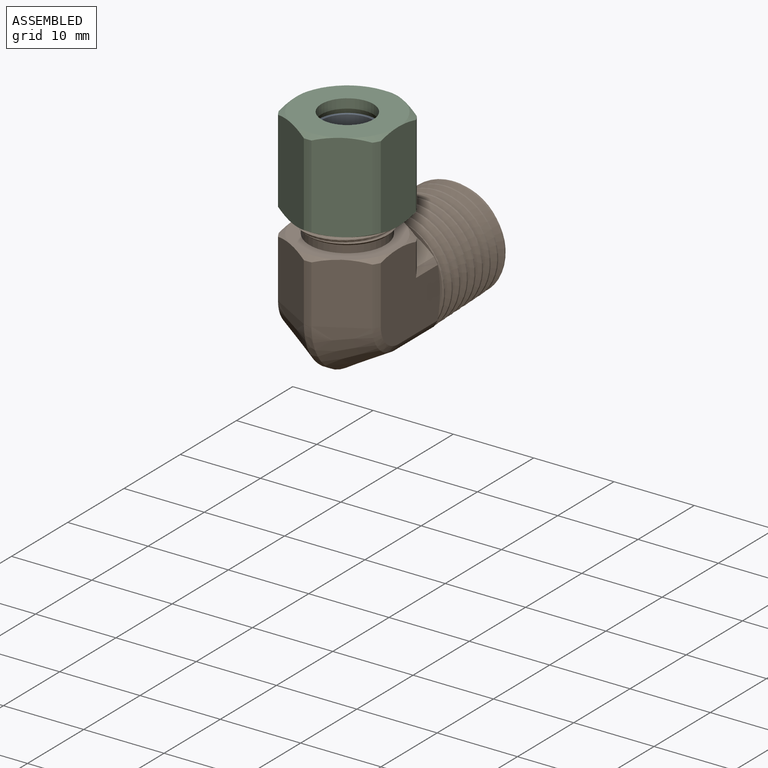
[diagram: assembled view]
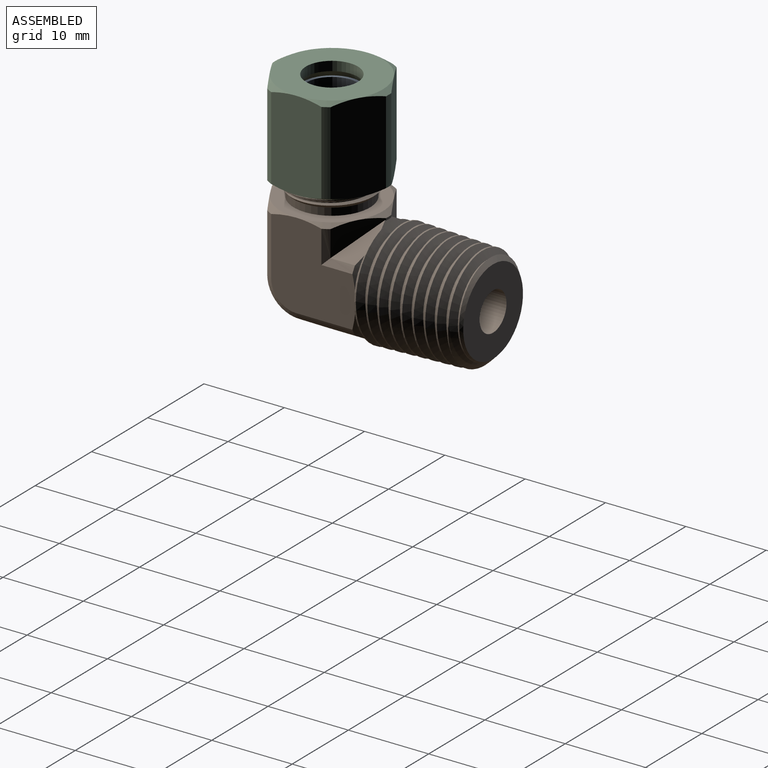
[diagram: assembled view, second angle]
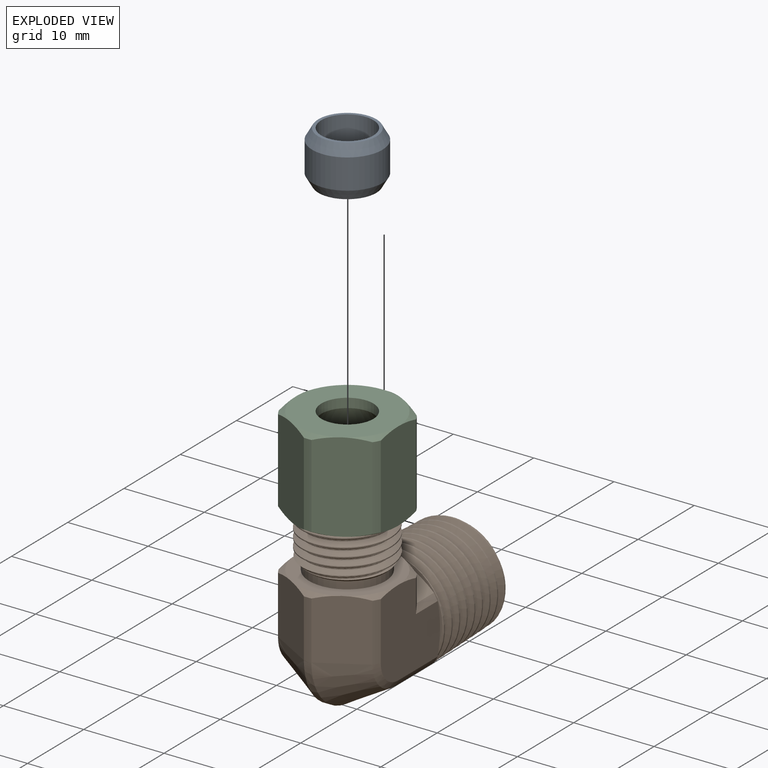
[diagram: exploded view]
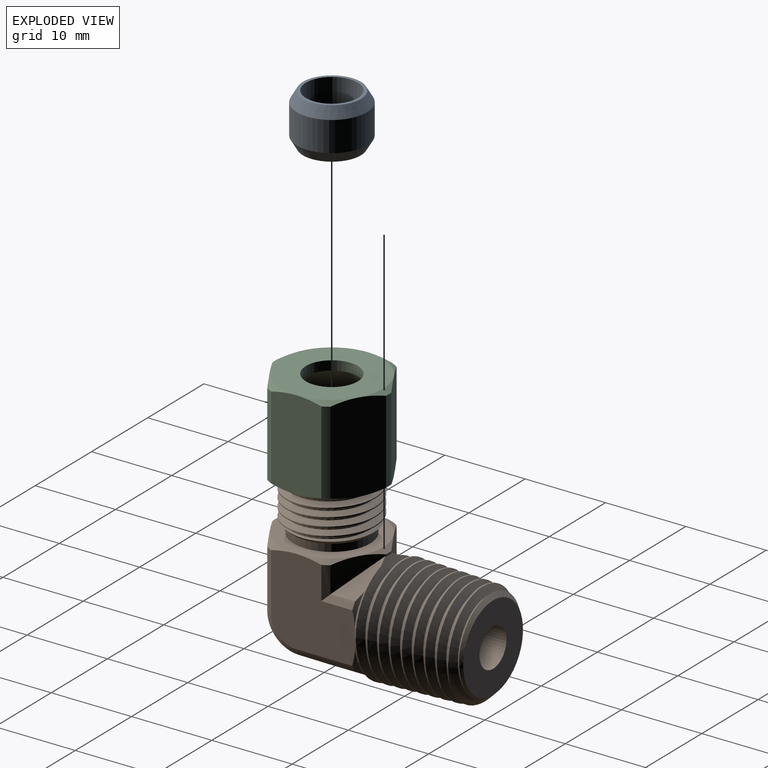
[diagram: exploded view, second angle]
ASSEMBLY  parts=3 mates=2
PART A: 6 faces, bbox 8.7x8.7x6.4 mm
  f0: cone r=3.62mm half-angle=30deg, axis (0,0,1), area 37.8mm2, adj f1,f5
  f1: cylinder r=4.37mm len=8.74mm, axis (0,0,1), area 102.7mm2, adj f0,f2
  f2: cone r=4.37mm half-angle=30deg, axis (0,0,-1), area 37.8mm2, adj f1,f4
  f3: cylinder r=3.24mm len=6.48mm, axis (0,0,1), area 129.2mm2, adj f4,f5
  f4: plane 7.23x7.23mm, normal (0,0,1), area 8.1mm2, adj f2,f3
  f5: plane 7.23x7.23mm, normal (0,0,-1), area 8.1mm2, adj f0,f3
PART B: 65 faces, bbox 14.6x28x23.7 mm
  f0: cone r=7.08mm half-angle=60deg, axis (0,-1,0), area 3.3mm2, adj f1,f43,f57,f58
  f1: cylinder r=7.08mm len=6.99mm, axis (0,-1,0), area 6.5mm2, adj f0,f57,f58,f63
  f2: cone r=5.32mm half-angle=45deg, axis (0,-1,0), area 26.4mm2, adj f3,f42,f45,f46,f47
  f3: cone r=5.32mm half-angle=45deg, axis (0,-1,0), area 6.6mm2, adj f2,f4,f45,f47
  f4: cone r=6.39mm half-angle=1.8deg, axis (0,-1,0), area 71.9mm2, adj f3,f44,f45,f47
  f5: cylinder r=2.39mm len=20.07mm, axis (0,-1,0), area 292.1mm2, adj f6,f42,f64
  f6: cylinder r=2.39mm len=8.38mm, axis (0,0,1), area 116.8mm2, adj f5,f39,f64
  f7: cylinder r=3.24mm len=6.48mm, axis (0,0,1), area 97.5mm2, adj f38,f39
  f8: cone r=3.62mm half-angle=30deg, axis (0,0,1), area 37.8mm2, adj f9,f38
  f9: cylinder r=4.37mm len=8.74mm, axis (0,0,1), area 20.9mm2, adj f8,f17
  f10: cone r=4.75mm half-angle=45deg, axis (0,0,-1), area 20.6mm2, adj f13,f17,f19,f20,f21,f22
  f11: cylinder r=4.75mm len=9.51mm, axis (0,0,1), area 27.4mm2, adj f12,f18
  f12: cone r=5.67mm half-angle=45deg, axis (0,0,1), area 20.5mm2, adj f11,f13,f19,f20,f21
  f13: cylinder r=5.56mm len=11.11mm, axis (0,0,1), area 22.3mm2, adj f10,f12,f19,f21
  f14: cylinder r=7.08mm len=0.93mm, axis (0,0,1), area 0.2mm2, adj f15,f16,f31,f52
  f15: plane 5.86x4.12mm, normal (-0.5,0.87,0), area 12.4mm2, adj f14,f29,f30,f31,f40,f52
  f16: plane 5.86x4.12mm, normal (0.5,0.87,0), area 12.4mm2, adj f14,f31,f32,f33,f41,f52
  f17: plane 9.51x9.51mm, normal (0,0,1), area 11mm2, adj f9,f10
  f18: plane 12.7x12.7mm, normal (0,0,1), area 55.7mm2, adj f11,f23,f25,f27,f29,f31,f33
  f19: bspline ~11.23x11.23mm, area 141.8mm2, adj f10,f12,f13,f20
  f20: cylinder r=4.87mm len=9.74mm, axis (0,0,1), area 26.2mm2, adj f10,f12,f19,f21,f22
  f21: bspline ~11.23x11.23mm, area 141.5mm2, adj f10,f12,f13,f20
  f22: bspline ~11.23x5.61mm, area 1.3mm2, adj f10,f20
  f23: cone r=6.35mm half-angle=60deg, axis (0,0,-1), area 3.3mm2, adj f18,f24,f36,f37
  f24: cylinder r=7.08mm len=7.2mm, axis (0,0,1), area 6.7mm2, adj f23,f36,f37,f60
  f25: cone r=6.35mm half-angle=60deg, axis (0,0,-1), area 3.3mm2, adj f18,f26,f35,f36
  f26: cylinder r=7.08mm len=7.2mm, axis (0,0,1), area 6.7mm2, adj f25,f35,f36,f63
  f27: cone r=6.35mm half-angle=60deg, axis (0,0,-1), area 3.3mm2, adj f18,f28,f34,f35
  f28: cylinder r=7.08mm len=7.2mm, axis (0,0,1), area 6.7mm2, adj f27,f34,f35,f62
  f29: cone r=6.35mm half-angle=60deg, axis (0,0,-1), area 3.3mm2, adj f15,f18,f30,f34
  f30: cylinder r=7.08mm len=4.07mm, axis (0,0,1), area 3.4mm2, adj f15,f29,f34,f50
  f31: cone r=6.35mm half-angle=60deg, axis (0,0,-1), area 3.3mm2, adj f14,f15,f16,f18
  f32: cylinder r=7.08mm len=4.07mm, axis (0,0,1), area 3.4mm2, adj f16,f33,f37,f53
  f33: cone r=6.35mm half-angle=60deg, axis (0,0,-1), area 3.3mm2, adj f16,f18,f32,f37
  f34: plane 11.19x10.98mm, normal (-1,0,0), area 90.1mm2, adj f27,f28,f29,f30,f48,f49,f50,f51
  f35: plane 8.06x5.86mm, normal (-0.5,-0.87,0), area 46.8mm2, adj f25,f26,f27,f28,f61
  f36: plane 8.06x5.86mm, normal (0.5,-0.87,0), area 46.8mm2, adj f23,f24,f25,f26,f59
  f37: plane 11.19x10.98mm, normal (1,0,0), area 90.1mm2, adj f23,f24,f32,f33,f53,f54,f55,f56
  f38: plane 7.23x7.23mm, normal (0,0,1), area 8.1mm2, adj f7,f8
  f39: plane 6.48x6.48mm, normal (0,0,1), area 15mm2, adj f6,f7
  f40: plane 5.77x3.91mm, normal (-0.5,0,0.87), area 11.1mm2, adj f15,f50,f51,f52
  f41: plane 5.77x3.92mm, normal (0.5,0,0.87), area 11.1mm2, adj f16,f52,f53,f54
  f42: plane 10.64x10.64mm, normal (0,1,0), area 71mm2, adj f2,f5
  f43: plane 11.71x10.3mm, normal (0,1,0), area 5.7mm2, adj f0,f45,f46,f47,f49,f51,f55
  f44: plane 11.82x10.47mm, normal (0,-1,0), area 5.6mm2, adj f4,f45,f47,f51,f52,f54,f55
  f45: bspline ~14.77x13.48mm, area 184.1mm2, adj f2,f3,f4,f43,f44,f46
  f46: bspline ~12.83x11.59mm, area 55.8mm2, adj f2,f43,f45,f47
  f47: bspline ~13.88x13.83mm, area 347.9mm2, adj f2,f3,f4,f43,f44,f46
  f48: cylinder r=7.08mm len=6.99mm, axis (0,-1,0), area 6.5mm2, adj f34,f49,f58,f62
  f49: cone r=7.08mm half-angle=60deg, axis (0,-1,0), area 3.3mm2, adj f34,f43,f48,f58
  f50: cylinder r=7.08mm len=3.86mm, axis (0,-1,0), area 3.2mm2, adj f30,f34,f40,f51
  f51: cone r=7.08mm half-angle=60deg, axis (0,-1,0), area 3.3mm2, adj f34,f40,f43,f44,f50
  f52: cone r=7.08mm half-angle=60deg, axis (0,-1,0), area 2.2mm2, adj f14,f15,f16,f40,f41,f44
  f53: cylinder r=7.08mm len=3.86mm, axis (0,-1,0), area 3.2mm2, adj f32,f37,f41,f54
  f54: cone r=7.08mm half-angle=60deg, axis (0,-1,0), area 3.3mm2, adj f37,f41,f44,f53
  f55: cone r=7.08mm half-angle=60deg, axis (0,-1,0), area 3.3mm2, adj f37,f43,f44,f56,f57
  f56: cylinder r=7.08mm len=6.99mm, axis (0,-1,0), area 6.5mm2, adj f37,f55,f57,f60
  f57: plane 7.85x5.86mm, normal (0.5,0,-0.87), area 45.5mm2, adj f0,f1,f55,f56,f59
  f58: plane 7.85x5.86mm, normal (-0.5,0,-0.87), area 45.5mm2, adj f0,f1,f48,f49,f61
  f59: cone r=3.94mm half-angle=30deg, axis (-1,0,0), area 54mm2, adj f36,f57,f60,f63
  f60: sphere r=7.08mm, area 5.2mm2, adj f24,f37,f56,f59
  f61: cone r=7.06mm half-angle=30deg, axis (1,0,0), area 54mm2, adj f35,f58,f62,f63
  f62: sphere r=7.08mm, area 5.2mm2, adj f28,f34,f48,f61
  f63: sphere r=7.08mm, area 10.5mm2, adj f1,f26,f59,f61
  f64: sphere r=2.39mm, area 24.4mm2, adj f5,f6
PART C: 30 faces, bbox 14.6x14.6x11.6 mm
  f0: cylinder r=3.24mm len=6.48mm, axis (0,0,1), area 23.6mm2, adj f1,f5
  f1: cone r=5.56mm half-angle=30deg, axis (0,0,-1), area 128.1mm2, adj f0,f2
  f2: cylinder r=5.56mm len=11.11mm, axis (0,0,1), area 205.5mm2, adj f1,f3
  f3: cone r=5.67mm half-angle=45deg, axis (0,0,-1), area 5.7mm2, adj f2,f4
  f4: plane 12.7x12.7mm, normal (0,0,-1), area 25.6mm2, adj f3,f8,f11,f15,f19,f23,f25
  f5: plane 12.7x12.7mm, normal (0,0,1), area 93.7mm2, adj f0,f6,f9,f13,f17,f21,f27
  f6: cone r=6.35mm half-angle=60deg, axis (0,0,-1), area 3.3mm2, adj f5,f7,f28,f29
  f7: cylinder r=7.08mm len=10.34mm, axis (0,0,1), area 9.7mm2, adj f6,f8,f28,f29
  f8: cone r=7.08mm half-angle=60deg, axis (0,0,1), area 3.3mm2, adj f4,f7,f28,f29
  f9: cone r=6.35mm half-angle=60deg, axis (0,0,-1), area 3.3mm2, adj f5,f10,f12,f29
  f10: cylinder r=7.08mm len=10.34mm, axis (0,0,1), area 9.7mm2, adj f9,f11,f12,f29
  f11: cone r=7.08mm half-angle=60deg, axis (0,0,1), area 3.3mm2, adj f4,f10,f12,f29
  f12: plane 11.62x6.7mm, normal (-1,0,0), area 68.1mm2, adj f9,f10,f11,f13,f14,f15
  f13: cone r=6.35mm half-angle=60deg, axis (0,0,-1), area 3.3mm2, adj f5,f12,f14,f16
  f14: cylinder r=7.08mm len=10.34mm, axis (0,0,1), area 9.7mm2, adj f12,f13,f15,f16
  f15: cone r=7.08mm half-angle=60deg, axis (0,0,1), area 3.3mm2, adj f4,f12,f14,f16
  f16: plane 11.62x5.86mm, normal (-0.5,-0.87,0), area 68.1mm2, adj f13,f14,f15,f17,f18,f19
  f17: cone r=6.35mm half-angle=60deg, axis (0,0,-1), area 3.3mm2, adj f5,f16,f18,f20
  f18: cylinder r=7.08mm len=10.34mm, axis (0,0,1), area 9.7mm2, adj f16,f17,f19,f20
  f19: cone r=7.08mm half-angle=60deg, axis (0,0,1), area 3.3mm2, adj f4,f16,f18,f20
  f20: plane 11.62x5.86mm, normal (0.5,-0.87,0), area 68.1mm2, adj f17,f18,f19,f21,f22,f23
  f21: cone r=6.35mm half-angle=60deg, axis (0,0,-1), area 3.3mm2, adj f5,f20,f22,f24
  f22: cylinder r=7.08mm len=10.34mm, axis (0,0,1), area 9.7mm2, adj f20,f21,f23,f24
  f23: cone r=7.08mm half-angle=60deg, axis (0,0,1), area 3.3mm2, adj f4,f20,f22,f24
  f24: plane 11.62x6.7mm, normal (1,0,0), area 68.1mm2, adj f21,f22,f23,f25,f26,f27
  f25: cone r=7.08mm half-angle=60deg, axis (0,0,1), area 3.3mm2, adj f4,f24,f26,f28
  f26: cylinder r=7.08mm len=10.34mm, axis (0,0,1), area 9.7mm2, adj f24,f25,f27,f28
  f27: cone r=6.35mm half-angle=60deg, axis (0,0,-1), area 3.3mm2, adj f5,f24,f26,f28
  f28: plane 11.62x5.86mm, normal (0.5,0.87,0), area 68.1mm2, adj f6,f7,f8,f25,f26,f27
  f29: plane 11.62x5.86mm, normal (-0.5,0.87,0), area 68.1mm2, adj f6,f7,f8,f9,f10,f11
PLACE A t=(-1.24,0.09,3.81)mm
PLACE B t=(-1.24,0.09,3.81)mm
PLACE C t=(-1.24,0.09,3.81)mm
MATE fastened A.f0 <-> B.f6  axis (0,0,1) through (-1.24,0.09,11.43)mm
MATE fastened A.f0 <-> C.f0  axis (0,0,1) through (-1.24,0.09,25.14)mm
